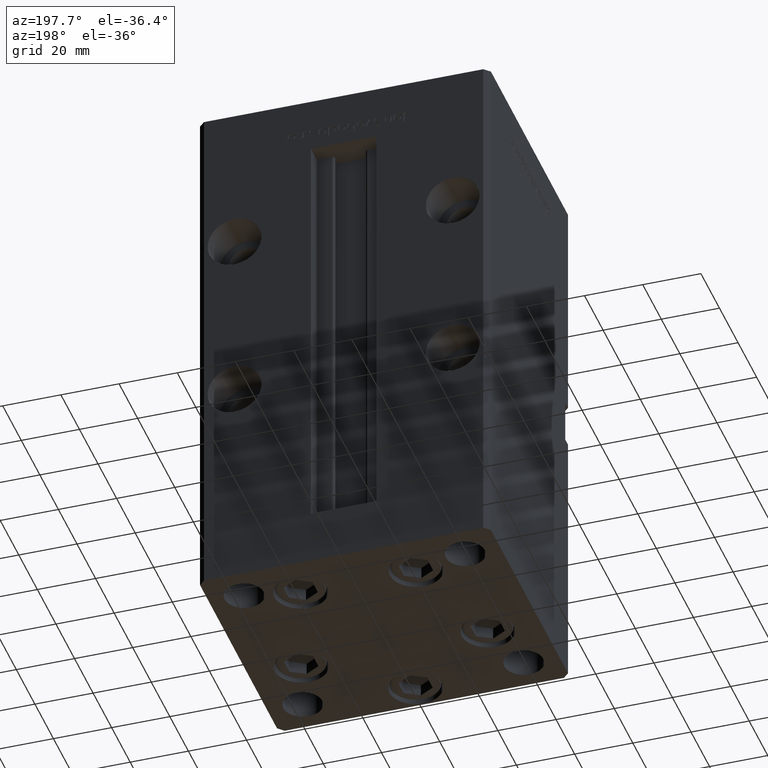
[diagram: clean part render]
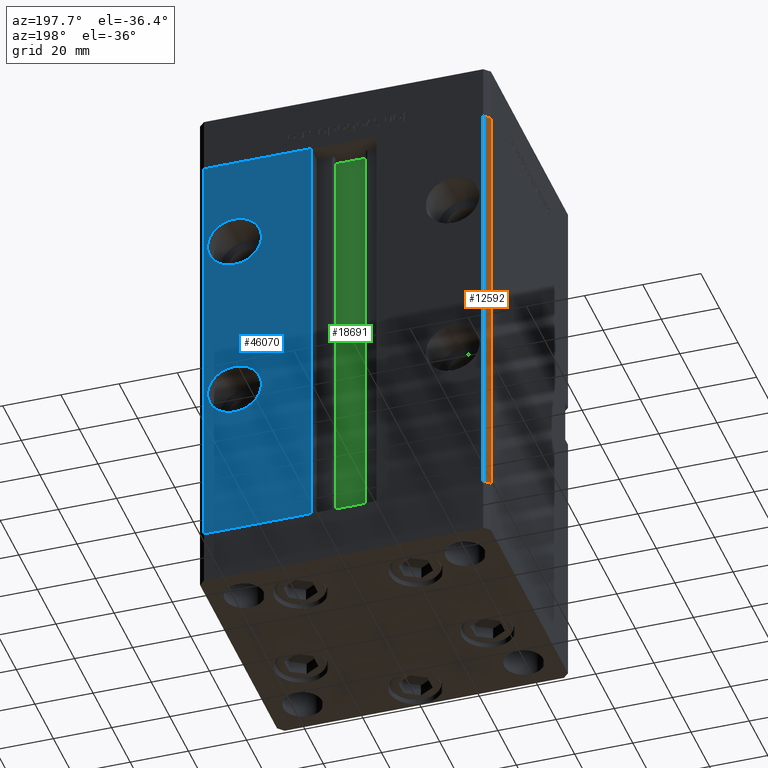
[diagram: same view with three faces highlighted in distinct colors, each labeled with its STEP entity id]
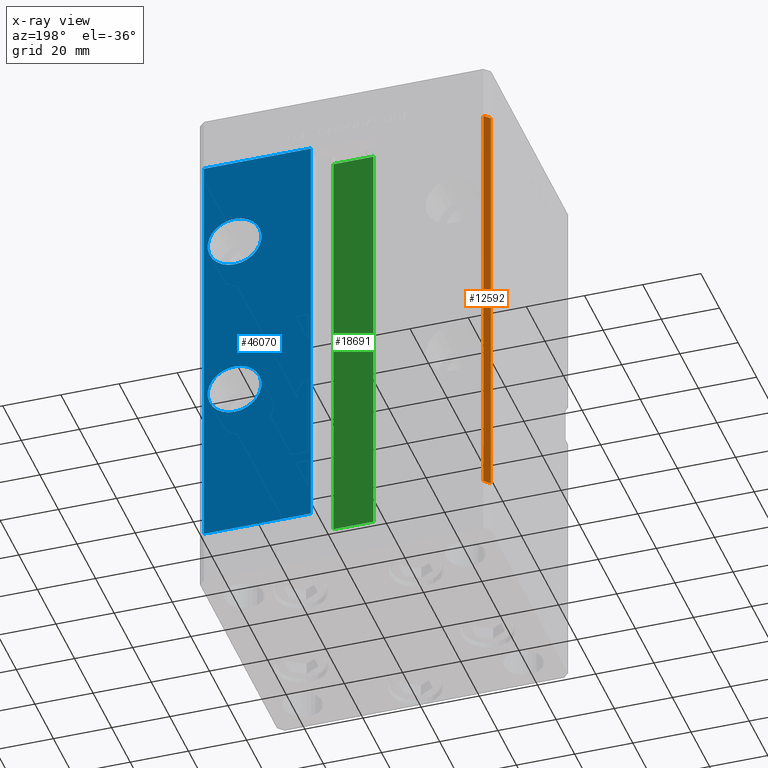
[diagram: x-ray of the same camera — body ghosted, the three highlighted faces saturated]
A machine part, auxiliary view with three faces highlighted in distinct colors.
The next image is the same camera in x-ray (body ghosted, the three faces saturated) — at least one of them is partly hidden behind the body in this view.
Their STEP definitions:

[orange] entity #12592 — the highlighted planar face has unit normal (0.7071, -0.7071, 0).
#3042 = CARTESIAN_POINT ( 'NONE',  ( -48.00000000000000711, 43.50000000000000000, 0.000000000000000000 ) ) ;
#3252 = PLANE ( 'NONE',  #39464 ) ;
#5853 = ORIENTED_EDGE ( 'NONE', *, *, #50853, .F. ) ;
#7202 = VERTEX_POINT ( 'NONE', #28334 ) ;
#7392 = DIRECTION ( 'NONE',  ( -0.000000000000000000, -0.000000000000000000, -1.000000000000000000 ) ) ;
#7932 = CARTESIAN_POINT ( 'NONE',  ( -48.00000000000000711, 43.50000000000000000, 0.000000000000000000 ) ) ;
#9975 = FACE_OUTER_BOUND ( 'NONE', #50186, .T. ) ;
#10816 = VERTEX_POINT ( 'NONE', #44267 ) ;
#11172 = EDGE_CURVE ( 'NONE', #19659, #7202, #31020, .T. ) ;
#11316 = CARTESIAN_POINT ( 'NONE',  ( -48.00000000000000711, 43.50000000000000000, 148.5000000000000000 ) ) ;
#11431 = LINE ( 'NONE', #11689, #25455 ) ;
#11689 = CARTESIAN_POINT ( 'NONE',  ( -50.00000000000001421, 41.49999999999999289, 148.5000000000000000 ) ) ;
#12592 = ADVANCED_FACE ( 'NONE', ( #9975 ), #3252, .F. ) ;
#13701 = DIRECTION ( 'NONE',  ( -0.000000000000000000, -0.000000000000000000, -1.000000000000000000 ) ) ;
#15068 = DIRECTION ( 'NONE',  ( 0.7071067811865463515, -0.7071067811865487940, 0.000000000000000000 ) ) ;
#19659 = VERTEX_POINT ( 'NONE', #7932 ) ;
#20802 = LINE ( 'NONE', #21592, #27253 ) ;
#21592 = CARTESIAN_POINT ( 'NONE',  ( -48.00000000000000711, 43.50000000000000000, 148.5000000000000000 ) ) ;
#21670 = ORIENTED_EDGE ( 'NONE', *, *, #47706, .F. ) ;
#22330 = CARTESIAN_POINT ( 'NONE',  ( -48.00000000000000711, 43.50000000000000000, 148.5000000000000000 ) ) ;
#25455 = VECTOR ( 'NONE', #7392, 1000.000000000000000 ) ;
#27253 = VECTOR ( 'NONE', #33970, 1000.000000000000000 ) ;
#28334 = CARTESIAN_POINT ( 'NONE',  ( -50.00000000000001421, 41.49999999999999289, 0.000000000000000000 ) ) ;
#31020 = LINE ( 'NONE', #3042, #42871 ) ;
#31599 = ORIENTED_EDGE ( 'NONE', *, *, #43199, .T. ) ;
#31828 = DIRECTION ( 'NONE',  ( -0.7071067811865487940, -0.7071067811865463515, 0.000000000000000000 ) ) ;
#33970 = DIRECTION ( 'NONE',  ( -0.7071067811865487940, -0.7071067811865463515, 0.000000000000000000 ) ) ;
#34176 = LINE ( 'NONE', #22330, #39936 ) ;
#36107 = VERTEX_POINT ( 'NONE', #47055 ) ;
#39464 = AXIS2_PLACEMENT_3D ( 'NONE', #11316, #15068, #39860 ) ;
#39860 = DIRECTION ( 'NONE',  ( 0.7071067811865487940, 0.7071067811865463515, 0.000000000000000000 ) ) ;
#39936 = VECTOR ( 'NONE', #13701, 1000.000000000000000 ) ;
#42871 = VECTOR ( 'NONE', #31828, 1000.000000000000000 ) ;
#43199 = EDGE_CURVE ( 'NONE', #10816, #19659, #34176, .T. ) ;
#44267 = CARTESIAN_POINT ( 'NONE',  ( -48.00000000000000711, 43.50000000000000000, 148.5000000000000000 ) ) ;
#47055 = CARTESIAN_POINT ( 'NONE',  ( -50.00000000000001421, 41.49999999999999289, 148.5000000000000000 ) ) ;
#47706 = EDGE_CURVE ( 'NONE', #36107, #7202, #11431, .T. ) ;
#49412 = ORIENTED_EDGE ( 'NONE', *, *, #11172, .T. ) ;
#50186 = EDGE_LOOP ( 'NONE', ( #49412, #21670, #5853, #31599 ) ) ;
#50853 = EDGE_CURVE ( 'NONE', #10816, #36107, #20802, .T. ) ;

[blue] entity #46070 — the highlighted planar face has unit normal (0, -1, 0).
#1535 = EDGE_CURVE ( 'NONE', #8049, #40359, #14983, .T. ) ;
#1736 = CARTESIAN_POINT ( 'NONE',  ( -11.24999999999999645, 43.50000000000000000, 148.5000000000000000 ) ) ;
#4821 = EDGE_CURVE ( 'NONE', #31070, #7708, #39342, .T. ) ;
#6280 = VECTOR ( 'NONE', #41615, 1000.000000000000000 ) ;
#7434 = EDGE_CURVE ( 'NONE', #16971, #13573, #48634, .T. ) ;
#7708 = VERTEX_POINT ( 'NONE', #20331 ) ;
#8049 = VERTEX_POINT ( 'NONE', #52261 ) ;
#10034 = CARTESIAN_POINT ( 'NONE',  ( 37.50000000000000000, 43.50000000000000000, 56.49999999999998579 ) ) ;
#10276 = ORIENTED_EDGE ( 'NONE', *, *, #23787, .F. ) ;
#10831 = DIRECTION ( 'NONE',  ( 0.000000000000000000, 0.000000000000000000, -1.000000000000000000 ) ) ;
#10921 = EDGE_CURVE ( 'NONE', #22988, #48079, #48002, .T. ) ;
#11225 = ORIENTED_EDGE ( 'NONE', *, *, #1535, .T. ) ;
#12218 = DIRECTION ( 'NONE',  ( 0.000000000000000000, 1.000000000000000000, 0.000000000000000000 ) ) ;
#12558 = DIRECTION ( 'NONE',  ( 1.000000000000000000, 0.000000000000000000, 0.000000000000000000 ) ) ;
#13054 = LINE ( 'NONE', #25190, #6280 ) ;
#13573 = VERTEX_POINT ( 'NONE', #36092 ) ;
#14283 = CIRCLE ( 'NONE', #35422, 9.250000000000008882 ) ;
#14983 = LINE ( 'NONE', #31414, #25518 ) ;
#15273 = AXIS2_PLACEMENT_3D ( 'NONE', #10034, #47691, #10831 ) ;
#16961 = EDGE_CURVE ( 'NONE', #48079, #22988, #14283, .T. ) ;
#16971 = VERTEX_POINT ( 'NONE', #37364 ) ;
#20331 = CARTESIAN_POINT ( 'NONE',  ( 37.50000000000000000, 43.50000000000000000, 65.74999999999998579 ) ) ;
#20948 = DIRECTION ( 'NONE',  ( 0.000000000000000000, 0.000000000000000000, 1.000000000000000000 ) ) ;
#21142 = ORIENTED_EDGE ( 'NONE', *, *, #16961, .F. ) ;
#21205 = CARTESIAN_POINT ( 'NONE',  ( 37.50000000000000000, 43.50000000000000000, 56.49999999999998579 ) ) ;
#22988 = VERTEX_POINT ( 'NONE', #51020 ) ;
#23787 = EDGE_CURVE ( 'NONE', #7708, #31070, #34309, .T. ) ;
#24817 = AXIS2_PLACEMENT_3D ( 'NONE', #45857, #12218, #45325 ) ;
#24821 = VECTOR ( 'NONE', #12558, 1000.000000000000000 ) ;
#25190 = CARTESIAN_POINT ( 'NONE',  ( 11.24999999999999645, 43.50000000000000000, 0.000000000000000000 ) ) ;
#25518 = VECTOR ( 'NONE', #35999, 1000.000000000000000 ) ;
#25980 = EDGE_LOOP ( 'NONE', ( #49320, #21142 ) ) ;
#26634 = DIRECTION ( 'NONE',  ( -0.000000000000000000, -0.000000000000000000, -1.000000000000000000 ) ) ;
#27276 = DIRECTION ( 'NONE',  ( 0.000000000000000000, -1.000000000000000000, 0.000000000000000000 ) ) ;
#27368 = EDGE_LOOP ( 'NONE', ( #10276, #45840 ) ) ;
#29661 = AXIS2_PLACEMENT_3D ( 'NONE', #1736, #27276, #39131 ) ;
#31070 = VERTEX_POINT ( 'NONE', #38723 ) ;
#31133 = VECTOR ( 'NONE', #26634, 1000.000000000000000 ) ;
#31414 = CARTESIAN_POINT ( 'NONE',  ( -11.24999999999999645, 43.50000000000000000, 0.000000000000000000 ) ) ;
#31570 = PLANE ( 'NONE',  #29661 ) ;
#33858 = DIRECTION ( 'NONE',  ( 0.000000000000000000, 0.000000000000000000, -1.000000000000000000 ) ) ;
#34309 = CIRCLE ( 'NONE', #39455, 9.250000000000001776 ) ;
#34573 = FACE_OUTER_BOUND ( 'NONE', #51898, .T. ) ;
#35422 = AXIS2_PLACEMENT_3D ( 'NONE', #45701, #35834, #20948 ) ;
#35834 = DIRECTION ( 'NONE',  ( 0.000000000000000000, 1.000000000000000000, 0.000000000000000000 ) ) ;
#35978 = ORIENTED_EDGE ( 'NONE', *, *, #39646, .T. ) ;
#35999 = DIRECTION ( 'NONE',  ( -1.000000000000000000, 0.000000000000000000, 0.000000000000000000 ) ) ;
#36092 = CARTESIAN_POINT ( 'NONE',  ( 48.00000000000000711, 43.50000000000000000, 148.5000000000000000 ) ) ;
#36884 = EDGE_CURVE ( 'NONE', #13573, #8049, #37957, .T. ) ;
#37364 = CARTESIAN_POINT ( 'NONE',  ( 11.24999999999998934, 43.50000000000000000, 148.5000000000000000 ) ) ;
#37957 = LINE ( 'NONE', #50290, #31133 ) ;
#38249 = ORIENTED_EDGE ( 'NONE', *, *, #7434, .T. ) ;
#38610 = FACE_BOUND ( 'NONE', #27368, .T. ) ;
#38723 = CARTESIAN_POINT ( 'NONE',  ( 37.50000000000000000, 43.50000000000000000, 47.24999999999998579 ) ) ;
#39131 = DIRECTION ( 'NONE',  ( 0.000000000000000000, -0.000000000000000000, -1.000000000000000000 ) ) ;
#39342 = CIRCLE ( 'NONE', #15273, 9.250000000000001776 ) ;
#39455 = AXIS2_PLACEMENT_3D ( 'NONE', #21205, #49709, #33858 ) ;
#39646 = EDGE_CURVE ( 'NONE', #40359, #16971, #13054, .T. ) ;
#40359 = VERTEX_POINT ( 'NONE', #50578 ) ;
#41615 = DIRECTION ( 'NONE',  ( -0.000000000000000000, -0.000000000000000000, 1.000000000000000000 ) ) ;
#45325 = DIRECTION ( 'NONE',  ( 0.000000000000000000, 0.000000000000000000, 1.000000000000000000 ) ) ;
#45701 = CARTESIAN_POINT ( 'NONE',  ( 37.50000000000000000, 43.50000000000000000, 116.4999999999999858 ) ) ;
#45840 = ORIENTED_EDGE ( 'NONE', *, *, #4821, .F. ) ;
#45857 = CARTESIAN_POINT ( 'NONE',  ( 37.50000000000000000, 43.50000000000000000, 116.4999999999999858 ) ) ;
#46070 = ADVANCED_FACE ( 'NONE', ( #38610, #46920, #34573 ), #31570, .F. ) ;
#46920 = FACE_BOUND ( 'NONE', #25980, .T. ) ;
#47422 = ORIENTED_EDGE ( 'NONE', *, *, #36884, .T. ) ;
#47691 = DIRECTION ( 'NONE',  ( 0.000000000000000000, 1.000000000000000000, -0.000000000000000000 ) ) ;
#48002 = CIRCLE ( 'NONE', #24817, 9.250000000000008882 ) ;
#48079 = VERTEX_POINT ( 'NONE', #50072 ) ;
#48634 = LINE ( 'NONE', #49423, #24821 ) ;
#49320 = ORIENTED_EDGE ( 'NONE', *, *, #10921, .F. ) ;
#49423 = CARTESIAN_POINT ( 'NONE',  ( -11.24999999999999645, 43.50000000000000000, 148.5000000000000000 ) ) ;
#49709 = DIRECTION ( 'NONE',  ( 0.000000000000000000, 1.000000000000000000, -0.000000000000000000 ) ) ;
#50072 = CARTESIAN_POINT ( 'NONE',  ( 37.50000000000000000, 43.50000000000000000, 107.2499999999999858 ) ) ;
#50290 = CARTESIAN_POINT ( 'NONE',  ( 48.00000000000000711, 43.50000000000000000, 148.5000000000000000 ) ) ;
#50578 = CARTESIAN_POINT ( 'NONE',  ( 11.24999999999999645, 43.50000000000000000, 0.000000000000000000 ) ) ;
#51020 = CARTESIAN_POINT ( 'NONE',  ( 37.50000000000000000, 43.50000000000000000, 125.7500000000000000 ) ) ;
#51898 = EDGE_LOOP ( 'NONE', ( #11225, #35978, #38249, #47422 ) ) ;
#52261 = CARTESIAN_POINT ( 'NONE',  ( 48.00000000000000711, 43.50000000000000000, 0.000000000000000000 ) ) ;

[green] entity #18691 — the highlighted planar face has unit normal (0, -1, 0).
#1993 = CARTESIAN_POINT ( 'NONE',  ( -6.876153656360465050, 32.99999999999986500, 0.000000000000000000 ) ) ;
#3195 = EDGE_CURVE ( 'NONE', #17957, #16021, #38298, .T. ) ;
#3809 = DIRECTION ( 'NONE',  ( 1.000000000000000000, -0.000000000000000000, -0.000000000000000000 ) ) ;
#5218 = FACE_OUTER_BOUND ( 'NONE', #41644, .T. ) ;
#10032 = EDGE_CURVE ( 'NONE', #23470, #17957, #25466, .T. ) ;
#11368 = EDGE_CURVE ( 'NONE', #21413, #16021, #24022, .T. ) ;
#12320 = ORIENTED_EDGE ( 'NONE', *, *, #33879, .F. ) ;
#13001 = PLANE ( 'NONE',  #47994 ) ;
#14373 = VECTOR ( 'NONE', #30479, 1000.000000000000000 ) ;
#16021 = VERTEX_POINT ( 'NONE', #18577 ) ;
#17382 = CARTESIAN_POINT ( 'NONE',  ( 6.876153656360465050, 32.99999999999986500, 0.000000000000000000 ) ) ;
#17442 = ORIENTED_EDGE ( 'NONE', *, *, #10032, .F. ) ;
#17957 = VERTEX_POINT ( 'NONE', #18618 ) ;
#18577 = CARTESIAN_POINT ( 'NONE',  ( -6.876153656360465050, 32.99999999999986500, 148.5000000000000000 ) ) ;
#18618 = CARTESIAN_POINT ( 'NONE',  ( 6.876153656360465050, 32.99999999999986500, 148.5000000000000000 ) ) ;
#18691 = ADVANCED_FACE ( 'NONE', ( #5218 ), #13001, .F. ) ;
#21413 = VERTEX_POINT ( 'NONE', #1993 ) ;
#21878 = CARTESIAN_POINT ( 'NONE',  ( 6.876153656360465050, 32.99999999999986500, 0.000000000000000000 ) ) ;
#22978 = CARTESIAN_POINT ( 'NONE',  ( 6.876153656360465050, 32.99999999999986500, 0.000000000000000000 ) ) ;
#23470 = VERTEX_POINT ( 'NONE', #22978 ) ;
#24022 = LINE ( 'NONE', #40708, #26552 ) ;
#24398 = DIRECTION ( 'NONE',  ( -0.000000000000000000, -0.000000000000000000, 1.000000000000000000 ) ) ;
#25466 = LINE ( 'NONE', #17382, #34231 ) ;
#26192 = DIRECTION ( 'NONE',  ( 0.000000000000000000, -1.000000000000000000, -0.000000000000000000 ) ) ;
#26552 = VECTOR ( 'NONE', #40444, 1000.000000000000000 ) ;
#30479 = DIRECTION ( 'NONE',  ( -1.000000000000000000, 0.000000000000000000, 0.000000000000000000 ) ) ;
#33879 = EDGE_CURVE ( 'NONE', #21413, #23470, #40940, .T. ) ;
#34231 = VECTOR ( 'NONE', #24398, 1000.000000000000000 ) ;
#36109 = CARTESIAN_POINT ( 'NONE',  ( 6.876153656360465050, 32.99999999999986500, 0.000000000000000000 ) ) ;
#38047 = DIRECTION ( 'NONE',  ( 0.000000000000000000, 0.000000000000000000, -1.000000000000000000 ) ) ;
#38298 = LINE ( 'NONE', #50911, #14373 ) ;
#38911 = VECTOR ( 'NONE', #3809, 1000.000000000000000 ) ;
#40444 = DIRECTION ( 'NONE',  ( -0.000000000000000000, -0.000000000000000000, 1.000000000000000000 ) ) ;
#40708 = CARTESIAN_POINT ( 'NONE',  ( -6.876153656360465050, 32.99999999999986500, 0.000000000000000000 ) ) ;
#40940 = LINE ( 'NONE', #36109, #38911 ) ;
#40952 = ORIENTED_EDGE ( 'NONE', *, *, #11368, .T. ) ;
#41644 = EDGE_LOOP ( 'NONE', ( #17442, #12320, #40952, #42660 ) ) ;
#42660 = ORIENTED_EDGE ( 'NONE', *, *, #3195, .F. ) ;
#47994 = AXIS2_PLACEMENT_3D ( 'NONE', #21878, #26192, #38047 ) ;
#50911 = CARTESIAN_POINT ( 'NONE',  ( 0.000000000000000000, 32.99999999999986500, 148.5000000000000000 ) ) ;